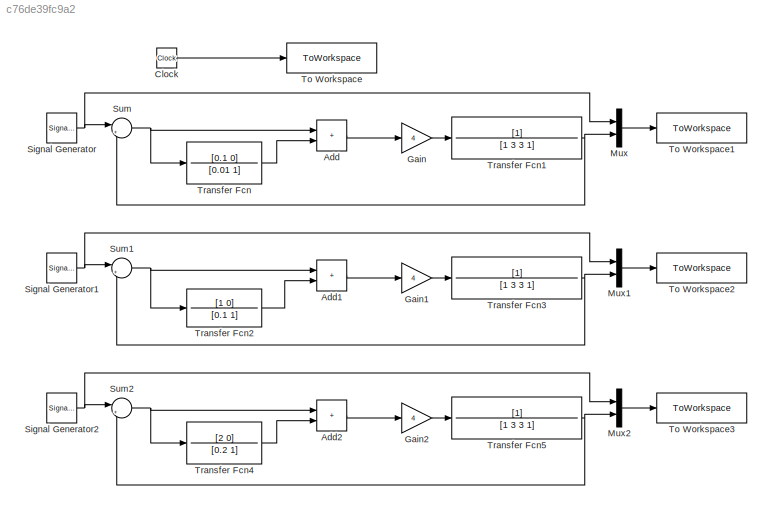
MODEL slx_c76de39fc9a2
KIND model
CONFIG AbsTol = auto
CONFIG EnableMultiTasking = off
CONFIG FixedStep = auto
CONFIG MaxStep = auto
CONFIG MinStep = auto
CONFIG RelTol = 1e-3
CONFIG SampleTimeConstraint = Unconstrained
CONFIG SolverName = VariableStepAuto
CONFIG StartTime = 0.0
CONFIG StopTime = 75
BLOCK [Sum] Add
  IconShape = rectangular
BLOCK [Sum] Add1
  IconShape = rectangular
BLOCK [Sum] Add2
  IconShape = rectangular
BLOCK [Clock] Clock
BLOCK [Gain] Gain
  Gain = 4
BLOCK [Gain] Gain1
  Gain = 4
BLOCK [Gain] Gain2
  Gain = 4
BLOCK [Mux] Mux
  DisplayOption = bar
  Inputs = 2
BLOCK [Mux] Mux1
  DisplayOption = bar
  Inputs = 2
BLOCK [Mux] Mux2
  DisplayOption = bar
  Inputs = 2
BLOCK [SignalGenerator] Signal Generator
  Frequency = 0.02
  WaveForm = square
BLOCK [SignalGenerator] Signal Generator1
  Frequency = 0.02
  WaveForm = square
BLOCK [SignalGenerator] Signal Generator2
  Frequency = 0.02
  WaveForm = square
BLOCK [Sum] Sum
  Inputs = |+-
BLOCK [Sum] Sum1
  Inputs = |+-
BLOCK [Sum] Sum2
  Inputs = |+-
BLOCK [ToWorkspace] To Workspace
  FixptAsFi = on
  MaxDataPoints = inf
  SampleTime = -1
  VariableName = time
BLOCK [ToWorkspace] To Workspace1
  FixptAsFi = on
  MaxDataPoints = inf
  SampleTime = -1
  VariableName = TOPD_01
BLOCK [ToWorkspace] To Workspace2
  FixptAsFi = on
  MaxDataPoints = inf
  SampleTime = -1
  VariableName = TOPD_1
BLOCK [ToWorkspace] To Workspace3
  FixptAsFi = on
  MaxDataPoints = inf
  SampleTime = -1
  VariableName = TOPD_2
BLOCK [TransferFcn] Transfer Fcn
  Denominator = [0.01 1]
  Numerator = [0.1 0]
BLOCK [TransferFcn] Transfer Fcn1
  Denominator = [1 3 3 1]
BLOCK [TransferFcn] Transfer Fcn2
  Denominator = [0.1 1]
  Numerator = [1 0]
BLOCK [TransferFcn] Transfer Fcn3
  Denominator = [1 3 3 1]
BLOCK [TransferFcn] Transfer Fcn4
  Denominator = [0.2 1]
  Numerator = [2 0]
BLOCK [TransferFcn] Transfer Fcn5
  Denominator = [1 3 3 1]
LINE Add1:1 -> Gain1:1
LINE Add2:1 -> Gain2:1
LINE Add:1 -> Gain:1
LINE Clock:1 -> To Workspace:1
LINE Gain1:1 -> Transfer Fcn3:1
LINE Gain2:1 -> Transfer Fcn5:1
LINE Gain:1 -> Transfer Fcn1:1
LINE Mux1:1 -> To Workspace2:1
LINE Mux2:1 -> To Workspace3:1
LINE Mux:1 -> To Workspace1:1
NET Signal Generator1:1 -> Mux1:1, Sum1:1
NET Signal Generator2:1 -> Mux2:1, Sum2:1
NET Signal Generator:1 -> Mux:1, Sum:1
NET Sum1:1 -> Add1:1, Transfer Fcn2:1
NET Sum2:1 -> Add2:1, Transfer Fcn4:1
NET Sum:1 -> Add:1, Transfer Fcn:1
NET Transfer Fcn1:1 -> Mux:2, Sum:2
LINE Transfer Fcn2:1 -> Add1:2
NET Transfer Fcn3:1 -> Mux1:2, Sum1:2
LINE Transfer Fcn4:1 -> Add2:2
NET Transfer Fcn5:1 -> Mux2:2, Sum2:2
LINE Transfer Fcn:1 -> Add:2
note: NET lines group one-source signal fan-out (src -> all destinations, sorted); 1:1 wires keep LINE
